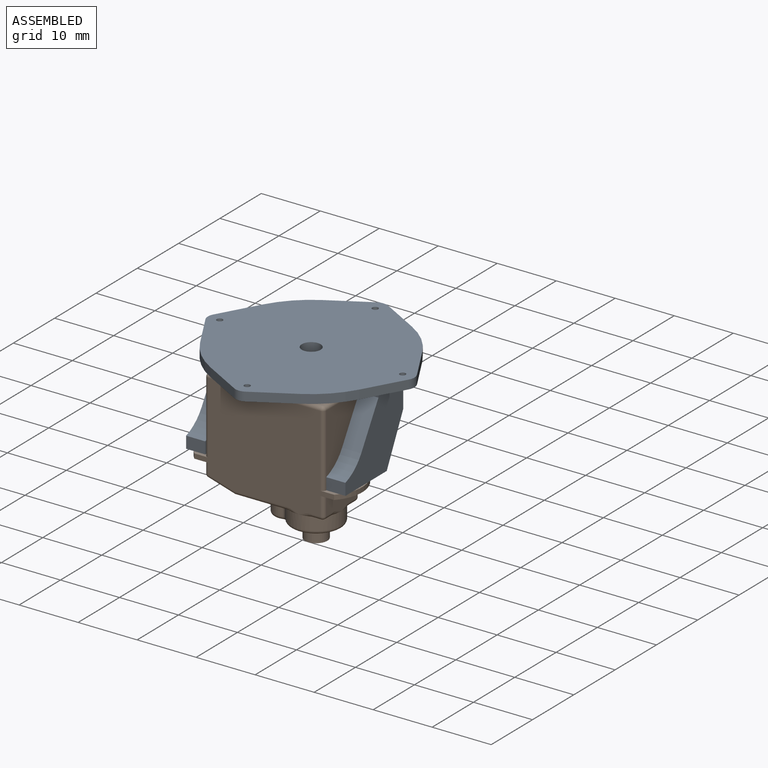
[diagram: assembled view]
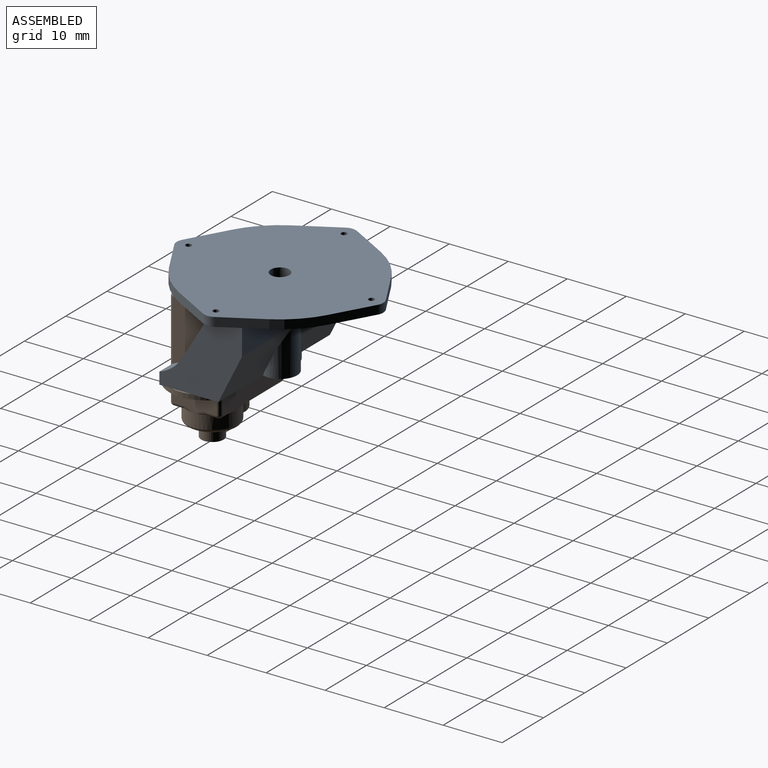
[diagram: assembled view, second angle]
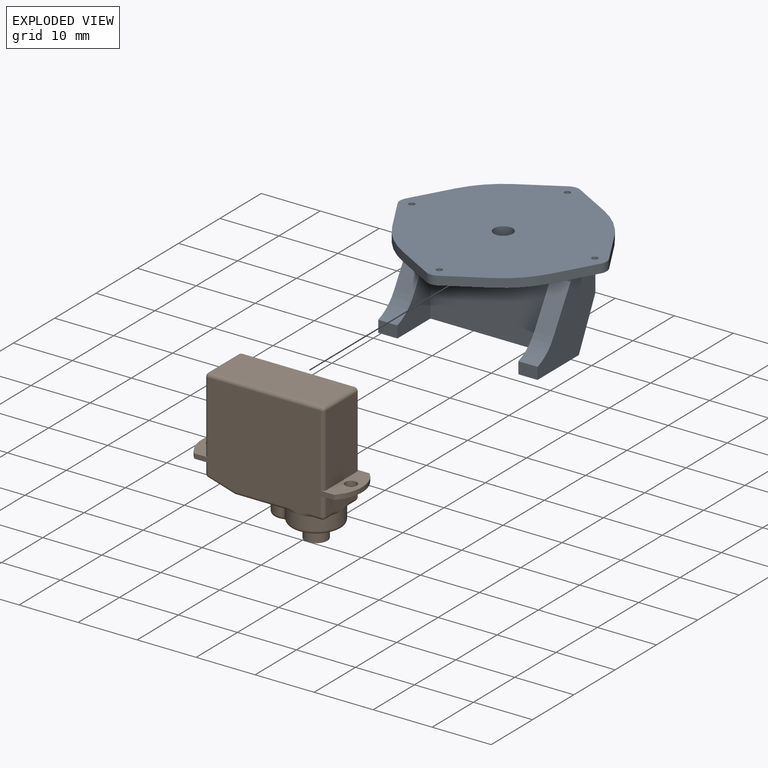
[diagram: exploded view]
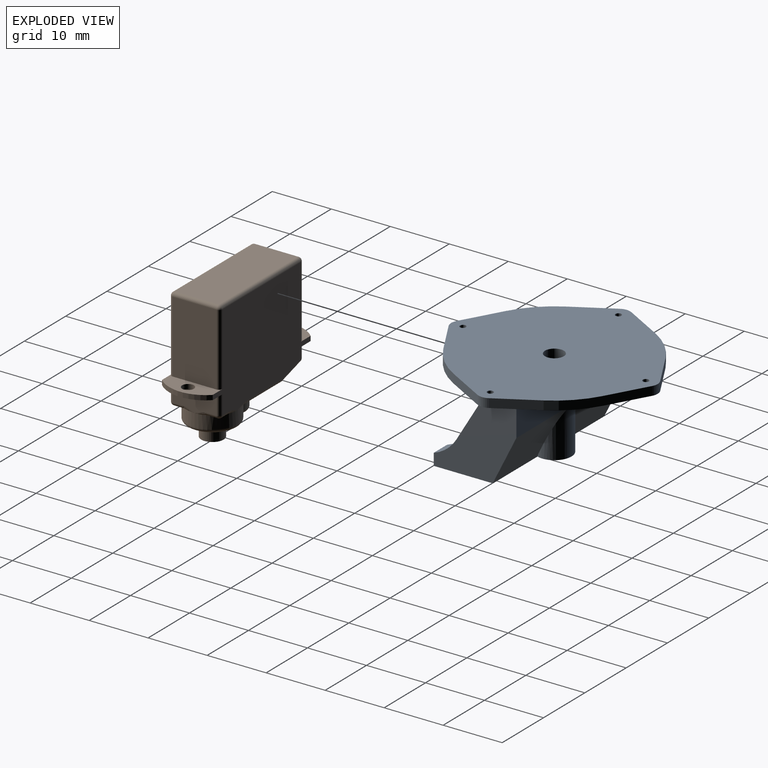
[diagram: exploded view, second angle]
ASSEMBLY  parts=2 mates=3
PART A: 38 faces, bbox 35x35x15 mm
  f0: plane 27x13.5mm, normal (0,-1,0), area 286.5mm2, adj f1,f24,f25,f27,f28,f31,f32,f33
  f1: plane 35x35mm, normal (0,0,-1), area 637.4mm2, adj f0,f2,f3,f4,f5,f6,f7,f8
  f2: plane 6.63x3.74mm, normal (0.49,-0.87,0), area 11.4mm2, adj f1,f3,f22,f23
  f3: cylinder r=15.5mm len=5.88mm, axis (0,0,-1), area 12.6mm2, adj f1,f2,f4,f23
  f4: plane 6.63x3.74mm, normal (0.87,-0.49,0), area 11.4mm2, adj f1,f3,f5,f23
  f5: cylinder r=2mm len=1.97mm, axis (0,0,-1), area 3.1mm2, adj f1,f4,f6,f23
  f6: plane 6.63x3.74mm, normal (0.87,0.49,0), area 11.4mm2, adj f1,f5,f7,f23
  f7: cylinder r=15.5mm len=5.88mm, axis (0,0,-1), area 12.6mm2, adj f1,f6,f8,f23
  f8: plane 6.63x3.74mm, normal (0.49,0.87,0), area 11.4mm2, adj f1,f7,f9,f23
  f9: cylinder r=2mm len=1.97mm, axis (0,0,-1), area 3.1mm2, adj f1,f8,f10,f23
  f10: plane 6.63x3.74mm, normal (-0.49,0.87,0), area 11.4mm2, adj f1,f9,f11,f23
  f11: cylinder r=15.5mm len=5.88mm, axis (0,0,-1), area 12.6mm2, adj f1,f10,f12,f23
  f12: plane 6.63x3.74mm, normal (-0.87,0.49,0), area 11.4mm2, adj f1,f11,f13,f23
  f13: cylinder r=2mm len=1.97mm, axis (0,0,-1), area 3.1mm2, adj f1,f12,f14,f23
  f14: plane 6.63x3.74mm, normal (-0.87,-0.49,0), area 11.4mm2, adj f1,f13,f15,f23
  f15: cylinder r=15.5mm len=5.88mm, axis (0,0,-1), area 12.6mm2, adj f1,f14,f16,f23
  f16: plane 6.63x3.74mm, normal (-0.49,-0.87,0), area 11.4mm2, adj f1,f15,f22,f23
  f17: cylinder r=0.5mm len=1.5mm, axis (0,0,-1), area 4.7mm2, adj f1,f23
  f18: cylinder r=0.5mm len=1.5mm, axis (0,0,-1), area 4.7mm2, adj f1,f23
  f19: cylinder r=0.5mm len=1.5mm, axis (0,0,-1), area 4.7mm2, adj f1,f23
  f20: cylinder r=0.5mm len=1.5mm, axis (0,0,-1), area 4.7mm2, adj f1,f23
  f21: cylinder r=1.6mm len=15mm, axis (0,0,-1), area 150.8mm2, adj f23,f27
  f22: cylinder r=2mm len=1.97mm, axis (0,0,-1), area 3.1mm2, adj f1,f2,f16,f23
  f23: plane 35x35mm, normal (0,0,1), area 791.3mm2, adj f2,f3,f4,f5,f6,f7,f8,f9
  f24: plane 14x13.5mm, normal (-1,0,0), area 112.6mm2, adj f0,f1,f26,f27,f29,f32,f35,f36
  f25: plane 14x13.5mm, normal (1,0,0), area 112.6mm2, adj f0,f1,f26,f27,f30,f33,f34,f36
  f26: plane 27x5.5mm, normal (0,1,0), area 148.5mm2, adj f1,f24,f25,f36
  f27: plane 27x13.9mm, normal (0,0,-1), area 116.9mm2, adj f0,f21,f24,f25,f28,f29,f30,f31
  f28: plane 12x8mm, normal (1,0,0), area 47.6mm2, adj f0,f27,f29,f32,f35
  f29: plane 3.25x2mm, normal (0,-1,0), area 6.5mm2, adj f24,f27,f28,f35
  f30: plane 3.25x2mm, normal (0,-1,0), area 6.5mm2, adj f25,f27,f31,f34
  f31: plane 12x8mm, normal (-1,0,0), area 47.6mm2, adj f0,f27,f30,f33,f34
  f32: plane 6.95x4.17mm, normal (0,-0.86,0.51), area 26.3mm2, adj f0,f24,f28,f35
  f33: plane 6.95x4.17mm, normal (0,-0.86,0.51), area 26.3mm2, adj f0,f25,f31,f34
  f34: cylinder r=7mm len=3.83mm, axis (-1,0,0), area 16.3mm2, adj f25,f30,f31,f33
  f35: cylinder r=7mm len=3.83mm, axis (1,0,0), area 16.3mm2, adj f24,f28,f29,f32
  f36: plane 27x8mm, normal (0,0.89,-0.45), area 199.2mm2, adj f24,f25,f26,f27,f37
  f37: cylinder r=2.9mm len=7.83mm, axis (0,0,1), area 53.9mm2, adj f27,f36
PART B: 71 faces, bbox 27.3x22.7x9.5 mm
  f0: plane 8.6x4.1mm, normal (0,-1,0), area 22.4mm2, adj f3,f4,f13,f22,f24,f64,f67
  f1: plane 8.6x4.1mm, normal (0,-1,0), area 22.4mm2, adj f3,f4,f15,f21,f23,f59,f61
  f2: plane 8.6x4.1mm, normal (0,1,0), area 22.4mm2, adj f3,f4,f16,f21,f23,f27,f33
  f3: plane 23.85x16.95mm, normal (0,0,-1), area 309.5mm2, adj f0,f1,f2,f12,f23,f24,f33,f36
  f4: plane 23.85x16.95mm, normal (0,0,1), area 309.5mm2, adj f0,f1,f2,f12,f23,f24,f26,f27
  f5: cylinder r=0.6mm len=5.2mm, axis (0,-1,0), area 19.6mm2, adj f7,f8
  f6: cylinder r=1.9mm len=3.8mm, axis (0,-1,0), area 28.7mm2, adj f7,f11
  f7: plane 3.8x3.8mm, normal (0,1,0), area 10.2mm2, adj f5,f6
  f8: plane 1.2x1.2mm, normal (0,1,0), area 1.1mm2, adj f5
  f9: cylinder r=4.3mm len=8.6mm, axis (0,-1,0), area 47.5mm2, adj f17,f19,f20,f26,f30,f32,f36,f38
  f10: cylinder r=2.4mm len=4.8mm, axis (0,-1,0), area 14.2mm2, adj f38,f39,f41,f44
  f11: plane 10.3x7.4mm, normal (0,1,0), area 41.1mm2, adj f6,f40,f42,f43,f44
  f12: plane 8.6x4.1mm, normal (0,1,0), area 22.4mm2, adj f3,f4,f18,f22,f24,f47,f54
  f13: plane 12.2x7.4mm, normal (-1,0,0), area 90.3mm2, adj f0,f64,f67,f70
  f14: plane 19x7.4mm, normal (0,-1,0), area 140.6mm2, adj f60,f65,f66,f70
  f15: plane 12.2x7.4mm, normal (1,0,0), area 90.3mm2, adj f1,f59,f60,f61
  f16: plane 7.48x3.88mm, normal (1,0,0), area 24.7mm2, adj f2,f27,f30,f31,f32,f33,f34
  f17: plane 1.51x1.51mm, normal (0,1,0), area 0.9mm2, adj f9,f28,f31
  f18: plane 7.4x1.85mm, normal (-1,0,0), area 13.7mm2, adj f12,f47,f54,f55
  f19: plane 1.51x1.51mm, normal (0,1,0), area 0.9mm2, adj f9,f34,f37
  f20: plane 8.62x7.4mm, normal (0,1,0), area 33.8mm2, adj f9,f38,f46,f52,f53
  f21: cylinder r=1mm len=2mm, axis (0,1,0), area 5mm2, adj f1,f2
  f22: cylinder r=1mm len=2mm, axis (0,1,0), area 5mm2, adj f0,f12
  f23: cylinder r=6.16mm len=8.6mm, axis (0,1,0), area 7.6mm2, adj f1,f2,f3,f4
  f24: cylinder r=6.16mm len=8.6mm, axis (0,1,0), area 7.6mm2, adj f0,f3,f4,f12
  f25: plane 7.4x4.49mm, normal (-0.29,0.96,0), area 34.7mm2, adj f48,f52,f55,f58
  f26: bspline ~2.45x0.73mm, area 0.9mm2, adj f4,f9,f28
  f27: cylinder r=0.6mm len=3.2mm, axis (0,-1,0), area 3mm2, adj f2,f4,f16,f29
  f28: cylinder r=0.6mm len=1.51mm, axis (1,0,0), area 1.4mm2, adj f4,f17,f26,f29
  f29: sphere r=0.6mm, area 0.6mm2, adj f27,f28,f31
  f30: bspline ~2.45x0.73mm, area 0.9mm2, adj f9,f16,f31
  f31: cylinder r=0.6mm len=1.51mm, axis (0,0,1), area 1.4mm2, adj f16,f17,f29,f30
  f32: bspline ~2.45x0.73mm, area 0.9mm2, adj f9,f16,f34
  f33: cylinder r=0.6mm len=3.2mm, axis (0,1,0), area 3mm2, adj f2,f3,f16,f35
  f34: cylinder r=0.6mm len=1.51mm, axis (0,0,1), area 1.4mm2, adj f16,f19,f32,f35
  f35: sphere r=0.6mm, area 0.6mm2, adj f33,f34,f37
  f36: bspline ~2.45x0.73mm, area 0.9mm2, adj f3,f9,f37
  f37: cylinder r=0.6mm len=1.51mm, axis (-1,0,0), area 1.4mm2, adj f3,f19,f35,f36
  f38: torus R=3mm, axis (0,-1,0), area 9.8mm2, adj f9,f10,f20,f39,f41
  f39: cylinder r=0.6mm len=2.18mm, axis (0,1,0), area 1.4mm2, adj f9,f10,f38,f42
  f40: torus R=3.7mm, axis (0,1,0), area 19.3mm2, adj f9,f11,f42,f43
  f41: cylinder r=0.6mm len=2.18mm, axis (0,1,0), area 1.4mm2, adj f9,f10,f38,f43
  f42: torus R=1.2mm, axis (0,1,0), area 0.9mm2, adj f11,f39,f40,f44
  f43: torus R=1.2mm, axis (0,1,0), area 0.9mm2, adj f11,f40,f41,f44
  f44: torus R=1.8mm, axis (0,1,0), area 7.6mm2, adj f10,f11,f42,f43
  f45: bspline ~2.45x0.73mm, area 0.9mm2, adj f3,f9,f46
  f46: cylinder r=0.6mm len=8.62mm, axis (-1,0,0), area 8.1mm2, adj f3,f20,f45,f49
  f47: cylinder r=0.6mm len=1.85mm, axis (0,-1,0), area 1.7mm2, adj f3,f12,f18,f51
  f48: cylinder r=0.6mm len=4.66mm, axis (0.96,0.29,0), area 4.4mm2, adj f3,f25,f49,f51
  f49: sphere r=0.6mm, area 0.1mm2, adj f46,f48,f52
  f50: bspline ~2.45x0.73mm, area 0.9mm2, adj f4,f9,f53
  f51: sphere r=0.6mm, area 0.5mm2, adj f47,f48,f55
  f52: cylinder r=0.6mm len=7.4mm, axis (0,0,1), area 1.3mm2, adj f20,f25,f49,f56
  f53: cylinder r=0.6mm len=8.62mm, axis (1,0,0), area 8.1mm2, adj f4,f20,f50,f56
  f54: cylinder r=0.6mm len=1.85mm, axis (0,1,0), area 1.7mm2, adj f4,f12,f18,f57
  f55: cylinder r=0.6mm len=7.4mm, axis (0,0,-1), area 5.7mm2, adj f18,f25,f51,f57
  f56: sphere r=0.6mm, area 0.1mm2, adj f52,f53,f58
  f57: sphere r=0.6mm, area 0.5mm2, adj f54,f55,f58
  f58: cylinder r=0.6mm len=4.66mm, axis (0.96,0.29,0), area 4.4mm2, adj f4,f25,f56,f57
  f59: cylinder r=0.6mm len=12.2mm, axis (0,-1,0), area 11.5mm2, adj f1,f4,f15,f62
  f60: cylinder r=0.6mm len=7.4mm, axis (0,0,-1), area 7mm2, adj f14,f15,f62,f63
  f61: cylinder r=0.6mm len=12.2mm, axis (0,1,0), area 11.5mm2, adj f1,f3,f15,f63
  f62: sphere r=0.6mm, area 0.6mm2, adj f59,f60,f65
  f63: sphere r=0.6mm, area 0.6mm2, adj f60,f61,f66
  f64: cylinder r=0.6mm len=12.2mm, axis (0,1,0), area 11.5mm2, adj f0,f4,f13,f68
  f65: cylinder r=0.6mm len=19mm, axis (-1,0,0), area 17.9mm2, adj f4,f14,f62,f68
  f66: cylinder r=0.6mm len=19mm, axis (1,0,0), area 17.9mm2, adj f3,f14,f63,f69
  f67: cylinder r=0.6mm len=12.2mm, axis (0,-1,0), area 11.5mm2, adj f0,f3,f13,f69
  f68: sphere r=0.6mm, area 0.6mm2, adj f64,f65,f70
  f69: sphere r=0.6mm, area 0.6mm2, adj f66,f67,f70
  f70: cylinder r=0.6mm len=7.4mm, axis (0,0,1), area 7mm2, adj f13,f14,f68,f69
PLACE A t=(16.14,17.65,15.67)mm fixed
PLACE B rot(axis=(-1,0,0),90deg) t=(16.29,10.35,6.27)mm
MATE planar A.f0 <-> B.f4  axis (0,-1,0) through (16.14,14.65,9.13)mm
MATE planar A.f31 <-> B.f15  axis (-1,0,0) through (26.39,11.83,5.96)mm
MATE planar A.f27 <-> B.f0  axis (0,0,-1) through (16.14,13.72,2.17)mm
